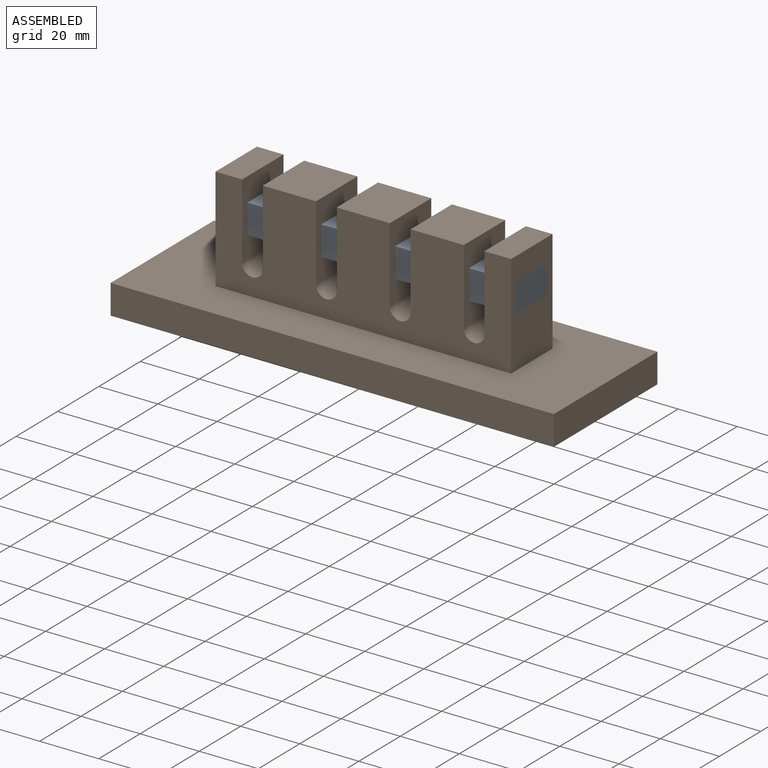
[diagram: assembled view]
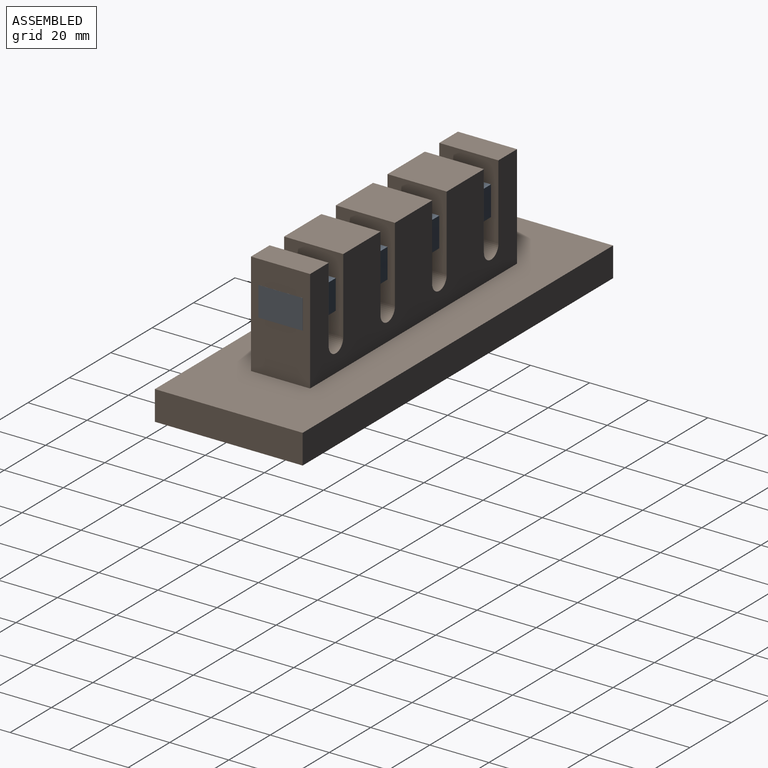
[diagram: assembled view, second angle]
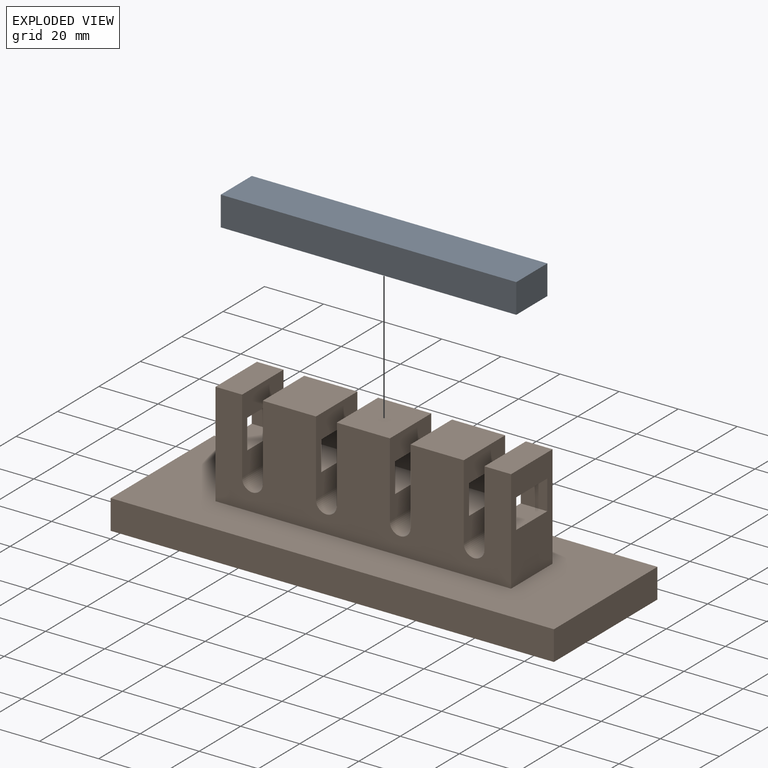
[diagram: exploded view]
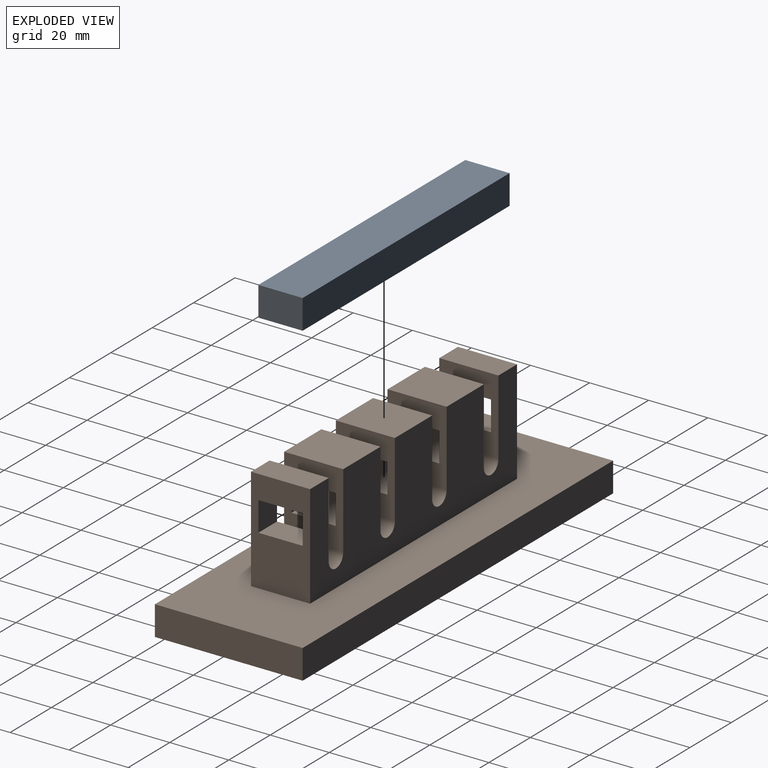
[diagram: exploded view, second angle]
ASSEMBLY  parts=2 mates=2
PART A: 6 faces, bbox 15x100x10 mm
  f0: plane 100x15mm, normal (0,0,1), area 1500mm2, adj f1,f3,f4,f5
  f1: plane 100x10mm, normal (-1,0,0), area 1000mm2, adj f0,f2,f4,f5
  f2: plane 100x15mm, normal (0,0,-1), area 1500mm2, adj f1,f3,f4,f5
  f3: plane 100x10mm, normal (1,0,0), area 1000mm2, adj f0,f2,f4,f5
  f4: plane 15x10mm, normal (0,-1,0), area 150mm2, adj f0,f1,f2,f3
  f5: plane 15x10mm, normal (0,1,0), area 150mm2, adj f0,f1,f2,f3
PART B: 47 faces, bbox 150x50x45 mm
  f0: plane 20x18mm, normal (0,0,1), area 360mm2, adj f4,f5,f18,f25
  f1: plane 20x18mm, normal (0,0,1), area 360mm2, adj f4,f5,f15,f23
  f2: plane 20x18mm, normal (0,0,1), area 360mm2, adj f4,f5,f20,f21
  f3: plane 20x9mm, normal (0,0,1), area 180mm2, adj f4,f5,f13,f17
  f4: plane 100x35mm, normal (0,-1,0), area 2709mm2, adj f0,f1,f2,f3,f10,f12,f13,f14
  f5: plane 100x35mm, normal (0,1,0), area 2709mm2, adj f0,f1,f2,f3,f10,f12,f13,f14
  f6: plane 150x10mm, normal (0,1,0), area 1500mm2, adj f7,f9,f10,f11
  f7: plane 50x10mm, normal (-1,0,0), area 500mm2, adj f6,f8,f10,f11
  f8: plane 150x10mm, normal (0,-1,0), area 1500mm2, adj f7,f9,f10,f11
  f9: plane 50x10mm, normal (1,0,0), area 500mm2, adj f6,f8,f10,f11
  f10: plane 150x50mm, normal (0,0,1), area 5500mm2, adj f4,f5,f6,f7,f8,f9,f12,f13
  f11: plane 150x50mm, normal (0,0,-1), area 7500mm2, adj f6,f7,f8,f9
  f12: plane 35x20mm, normal (-1,0,0), area 550mm2, adj f4,f5,f10,f14,f27,f28,f29,f30
  f13: plane 35x20mm, normal (1,0,0), area 550mm2, adj f3,f4,f5,f10,f43,f44,f45,f46
  f14: plane 20x9mm, normal (0,0,1), area 180mm2, adj f4,f5,f12,f26
  f15: plane 25.5x20mm, normal (1,0,0), area 360mm2, adj f1,f4,f5,f16,f35,f36,f37,f38
  f16: cylinder r=3.5mm len=20mm, axis (0,-1,0), area 219.9mm2, adj f4,f5,f15,f17
  f17: plane 25.5x20mm, normal (-1,0,0), area 360mm2, adj f3,f4,f5,f16,f43,f44,f45,f46
  f18: plane 25.5x20mm, normal (1,0,0), area 360mm2, adj f0,f4,f5,f19,f31,f32,f33,f34
  f19: cylinder r=3.5mm len=20mm, axis (0,-1,0), area 219.9mm2, adj f4,f5,f18,f20
  f20: plane 25.5x20mm, normal (-1,0,0), area 360mm2, adj f2,f4,f5,f19,f39,f40,f41,f42
  f21: plane 25.5x20mm, normal (1,0,0), area 360mm2, adj f2,f4,f5,f22,f39,f40,f41,f42
  f22: cylinder r=3.5mm len=20mm, axis (0,-1,0), area 219.9mm2, adj f4,f5,f21,f23
  f23: plane 25.5x20mm, normal (-1,0,0), area 360mm2, adj f1,f4,f5,f22,f35,f36,f37,f38
  f24: cylinder r=3.5mm len=20mm, axis (0,-1,0), area 219.9mm2, adj f4,f5,f25,f26
  f25: plane 25.5x20mm, normal (-1,0,0), area 360mm2, adj f0,f4,f5,f24,f31,f32,f33,f34
  f26: plane 25.5x20mm, normal (1,0,0), area 360mm2, adj f4,f5,f14,f24,f27,f28,f29,f30
  f27: plane 15x9mm, normal (0,0,-1), area 135mm2, adj f12,f26,f28,f30
  f28: plane 10x9mm, normal (0,-1,0), area 90mm2, adj f12,f26,f27,f29
  f29: plane 15x9mm, normal (0,0,1), area 135mm2, adj f12,f26,f28,f30
  f30: plane 10x9mm, normal (0,1,0), area 90mm2, adj f12,f26,f27,f29
  f31: plane 18x15mm, normal (0,0,-1), area 270mm2, adj f18,f25,f32,f34
  f32: plane 18x10mm, normal (0,-1,0), area 180mm2, adj f18,f25,f31,f33
  f33: plane 18x15mm, normal (0,0,1), area 270mm2, adj f18,f25,f32,f34
  f34: plane 18x10mm, normal (0,1,0), area 180mm2, adj f18,f25,f31,f33
  f35: plane 18x15mm, normal (0,0,-1), area 270mm2, adj f15,f23,f36,f38
  f36: plane 18x10mm, normal (0,-1,0), area 180mm2, adj f15,f23,f35,f37
  f37: plane 18x15mm, normal (0,0,1), area 270mm2, adj f15,f23,f36,f38
  f38: plane 18x10mm, normal (0,1,0), area 180mm2, adj f15,f23,f35,f37
  f39: plane 18x15mm, normal (0,0,-1), area 270mm2, adj f20,f21,f40,f42
  f40: plane 18x10mm, normal (0,-1,0), area 180mm2, adj f20,f21,f39,f41
  f41: plane 18x15mm, normal (0,0,1), area 270mm2, adj f20,f21,f40,f42
  f42: plane 18x10mm, normal (0,1,0), area 180mm2, adj f20,f21,f39,f41
  f43: plane 10x9mm, normal (0,1,0), area 90mm2, adj f13,f17,f44,f46
  f44: plane 15x9mm, normal (0,0,1), area 135mm2, adj f13,f17,f43,f45
  f45: plane 10x9mm, normal (0,-1,0), area 90mm2, adj f13,f17,f44,f46
  f46: plane 15x9mm, normal (0,0,-1), area 135mm2, adj f13,f17,f43,f45
PLACE A rot(axis=(0,0,1),90deg) t=(25.01,17.5,27)mm
PLACE B at identity
MATE planar A.f0 <-> B.f46  axis (0,0,1) through (75.01,17.5,37)mm
MATE planar A.f3 <-> B.f45  axis (0,1,0) through (125.01,32.5,32)mm
